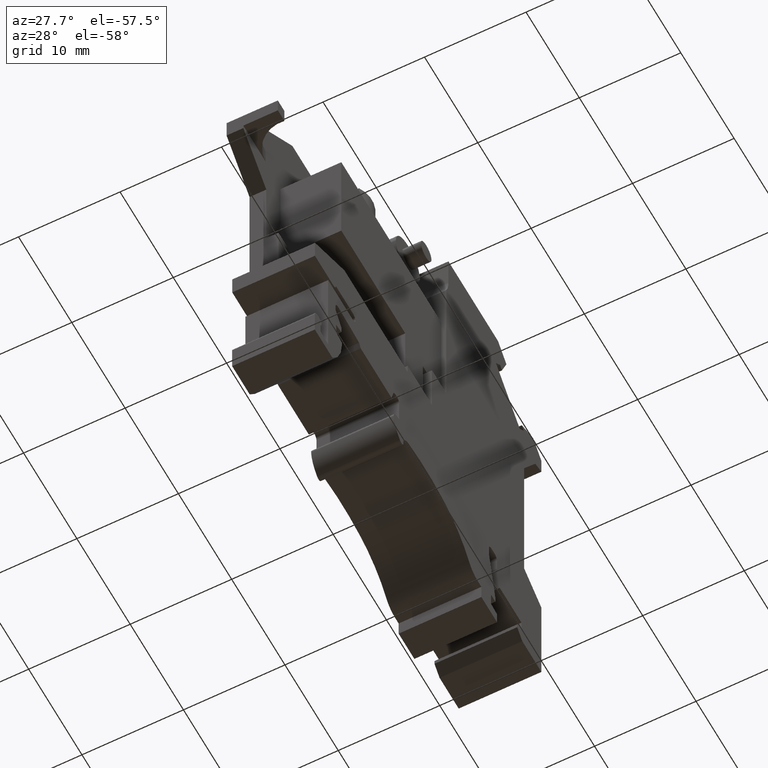
[diagram: clean part render]
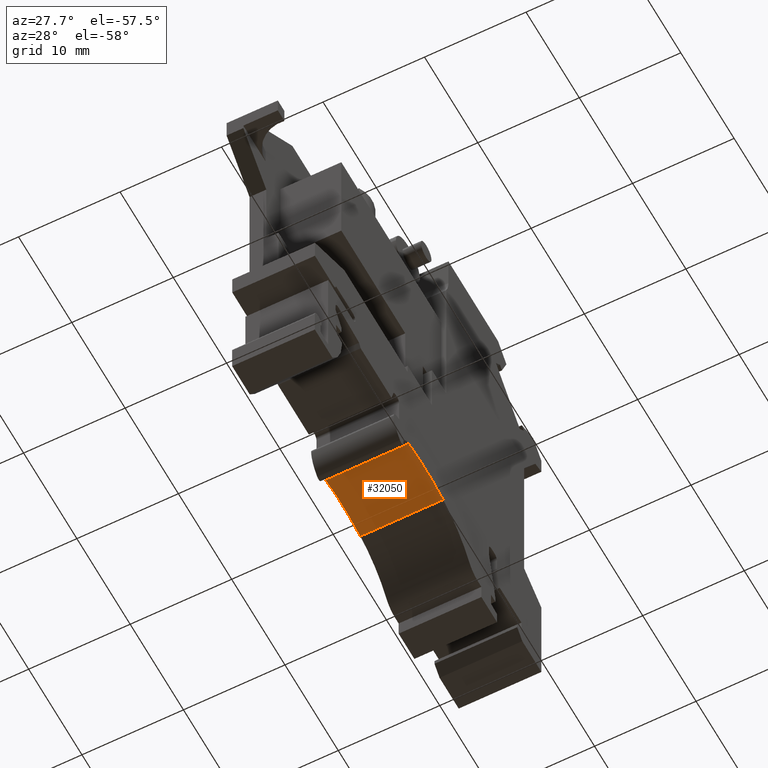
[diagram: same view with one face highlighted and labeled with its STEP entity id]
A machine part, auxiliary view. The second image highlights one B-rep face of the part: STEP entity #32050.
In plain terms, the highlighted cylindrical surface (partial cylindrical patch) has radius 16.2 mm, axis along (1, 0, 0).
Its self-contained STEP definition (entity closure, byte-faithful):
#4100=CARTESIAN_POINT('',(28.1495983262149,-3.92335516022672,0.));
#4110=VERTEX_POINT('',#4100);
#4140=CARTESIAN_POINT('',(31.1591997327283,-19.8413418222991,0.));
#4150=DIRECTION('',(0.,0.,1.));
#4160=DIRECTION('',(1.,0.,0.));
#4170=AXIS2_PLACEMENT_3D('',#4140,#4150,#4160);
#4180=CIRCLE('',#4170,16.2000000000001);
#4190=CARTESIAN_POINT('',(34.620024337029,-4.01532864594071,0.));
#4200=VERTEX_POINT('',#4190);
#4210=EDGE_CURVE('',#4200,#4110,#4180,.T.);
#24550=CARTESIAN_POINT('',(28.1495983262149,-3.92335516022672,8.15));
#24560=VERTEX_POINT('',#24550);
#24590=CARTESIAN_POINT('',(28.1495983262149,-3.92335516022672,12.));
#24600=DIRECTION('',(0.,0.,-1.));
#24610=VECTOR('',#24600,1.);
#24620=LINE('',#24590,#24610);
#24630=EDGE_CURVE('',#24560,#4110,#24620,.T.);
#31610=CARTESIAN_POINT('',(34.620024337029,-4.01532864594071,12.));
#31620=DIRECTION('',(0.,0.,-1.));
#31630=VECTOR('',#31620,1.);
#31640=LINE('',#31610,#31630);
#31650=CARTESIAN_POINT('',(34.6200243370289,-4.01532864594085,8.15));
#31660=VERTEX_POINT('',#31650);
#31670=EDGE_CURVE('',#31660,#4200,#31640,.T.);
#31880=CARTESIAN_POINT('',(31.1591997327283,-19.8413418222991,12.));
#31890=DIRECTION('',(0.,0.,1.));
#31900=DIRECTION('',(1.,0.,0.));
#31910=AXIS2_PLACEMENT_3D('',#31880,#31890,#31900);
#31920=CYLINDRICAL_SURFACE('',#31910,16.2000000000001);
#31930=CARTESIAN_POINT('',(31.1591997327283,-19.8413418222991,8.15));
#31940=DIRECTION('',(0.,0.,1.));
#31950=DIRECTION('',(1.,0.,0.));
#31960=AXIS2_PLACEMENT_3D('',#31930,#31940,#31950);
#31970=CIRCLE('',#31960,16.2000000000001);
#31980=EDGE_CURVE('',#31660,#24560,#31970,.T.);
#31990=ORIENTED_EDGE('',*,*,#31980,.T.);
#32000=ORIENTED_EDGE('',*,*,#31670,.F.);
#32010=ORIENTED_EDGE('',*,*,#4210,.F.);
#32020=ORIENTED_EDGE('',*,*,#24630,.T.);
#32030=EDGE_LOOP('',(#32020,#32010,#32000,#31990));
#32040=FACE_OUTER_BOUND('',#32030,.T.);
#32050=ADVANCED_FACE('',(#32040),#31920,.F.);